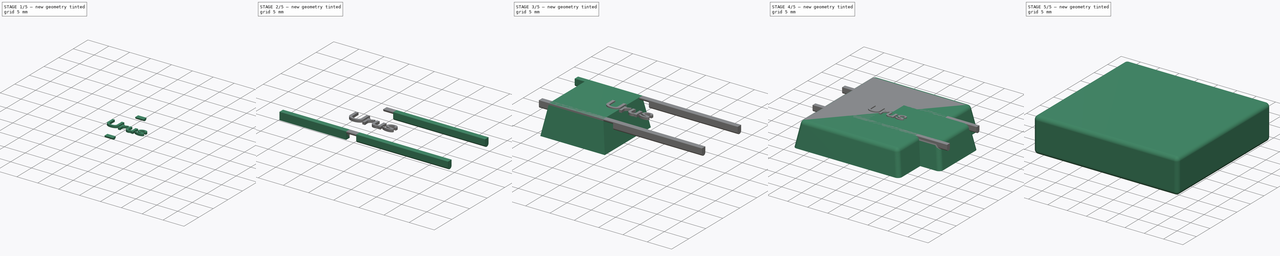
[diagram: build sequence overview — one tinted view per stage of 5, left to right]
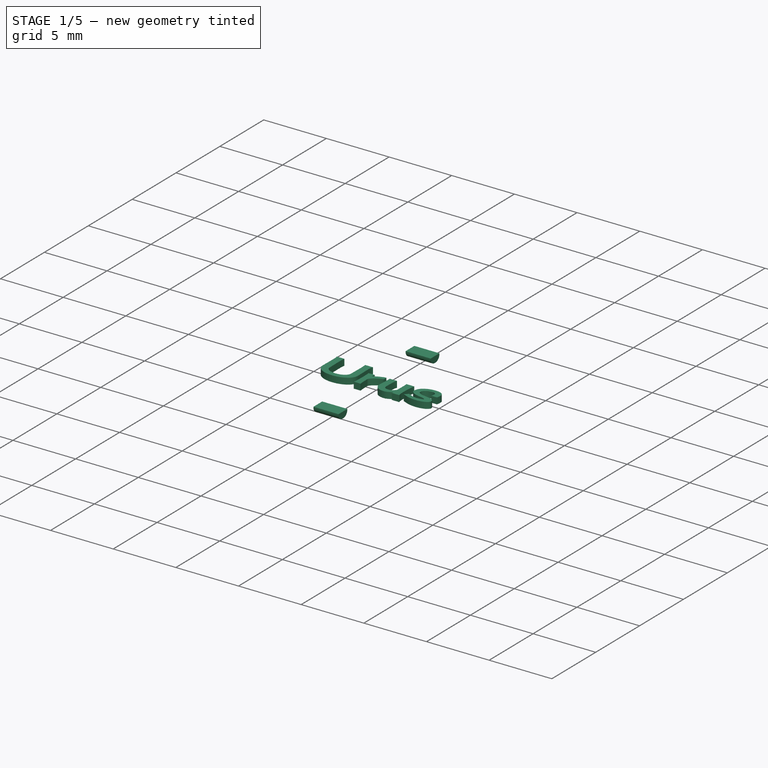
[diagram: stage 1 of 5 — iso view after this stage's code; geometry added in this stage tinted green]
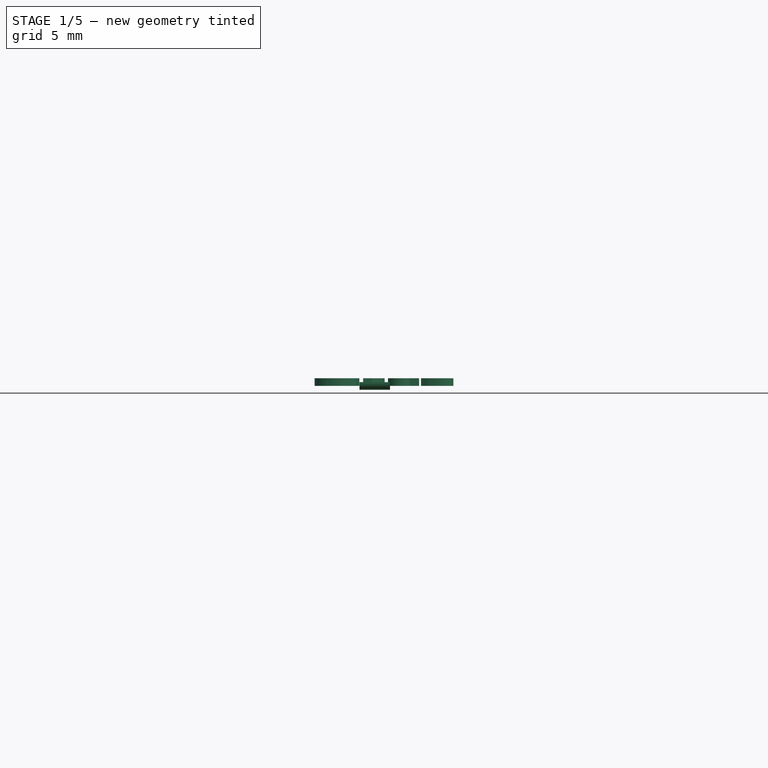
[diagram: stage 1 of 5 — front view after this stage's code; geometry added in this stage tinted green]
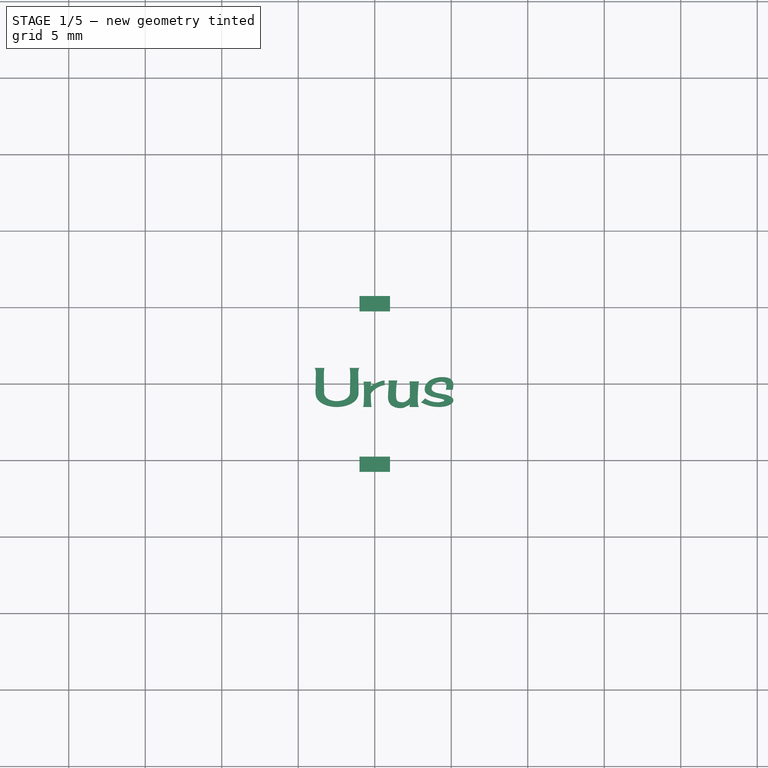
[diagram: stage 1 of 5 — top view after this stage's code; geometry added in this stage tinted green]
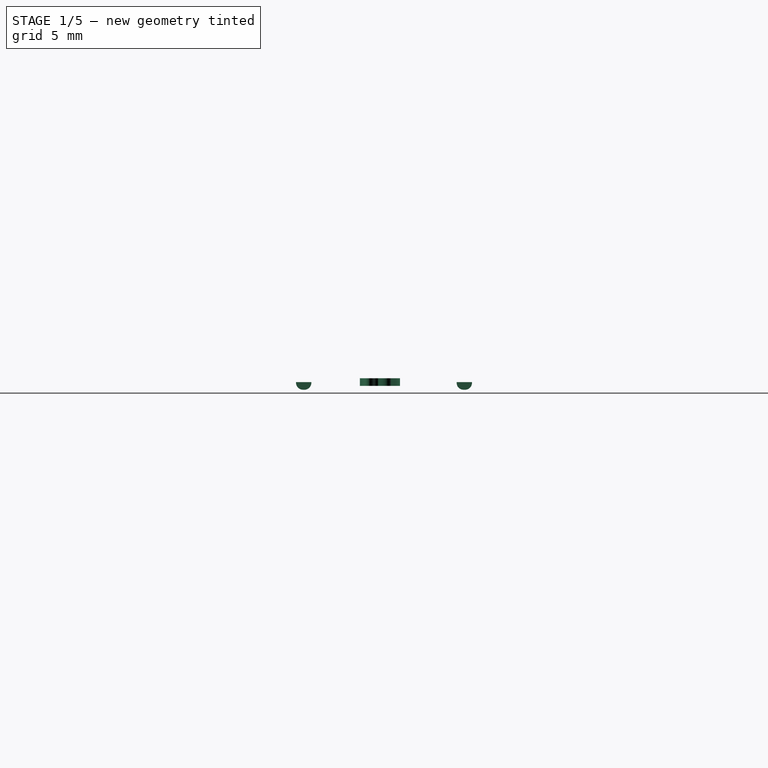
[diagram: stage 1 of 5 — right view after this stage's code; geometry added in this stage tinted green]
FCSTD DOCUMENT  (FreeCAD 0.19R24276 (Git))
Label: Mold_negative4
License: All rights reserved
LicenseURL: http://en.wikipedia.org/wiki/All_rights_reserved
objects: Part::Fillet×10, Part::Box×7, Part::Extrusion×4, Sketcher::SketchObject×3, Part::MultiFuse×2, Part::Cut×2, Spreadsheet::Sheet×1, Part::Part2DObjectPython×1
note: 29 computed .brp shape members not serialized (recipe doc carries the construction recipe); baked Part::Feature solids carry a one-line shape summary decoded from their .brp

FEATURE [Part::Box] Box005  label="Cube005"
  AttacherType = Attacher::AttachEngine3D
  Height = 0.5
  Length = 2
  Placement = pos=(-1,-5.75,5.5) rot=(0,0,1;0rad)
  Width = 1
  expr: .Placement.Base.z = <<data>>.height - 0.5
  expr: .Placement.Base.y = -<<data>>.left_width / 2 + <<data>>.channel_Y
FEATURE [Part::Box] Box006  label="Cube006"
  AttacherType = Attacher::AttachEngine3D
  Height = 0.5
  Length = 2
  Placement = pos=(-1,4.75,5.5) rot=(0,0,1;0rad)
  Width = 1
  expr: .Placement.Base.z = <<data>>.height - 0.5
  expr: .Placement.Base.y = <<data>>.left_width / 2 - <<data>>.channel_Y - 1mm
FEATURE [Part::Fillet] Fillet008
  Base = -> Box006
  Edges = 2 edges r=0.45: [Edge9,Edge11]
FEATURE [Part::Fillet] Fillet009
  Base = -> Box005
  Edges = 2 edges r=0.45: [Edge9,Edge11]
FEATURE [Part::Part2DObjectPython] ShapeString  # Draft 2D object (typed FeaturePython)
  AttacherType1 = Attacher::AttachEnginePlane
  FontFile = <userpath>/Documents/git/KiCad/Inkscape/fonts/CherryCreamSoda-Regular.ttf
  MapMode = 5
  MapMode1 = -1
  MapPathParameter1 = -3
  MapReversed1 = false
  Size = 1.5
  String = Urus
  Tracking = 0
FEATURE [Part::Extrusion] Extrude005
  Base = -> ShapeString
  Dir = (0,0,0.5)
  DirMode = 0
  FaceMakerClass = Part::FaceMakerExtrusion
  LengthFwd = 0
  LengthRev = 0
  Placement = pos=(-4,-1.5,5.75) rot=(0,0,1;0rad)
  Solid = false
  Symmetric = false
  expr: .Placement.Base.z = <<data>>.height - 0.25
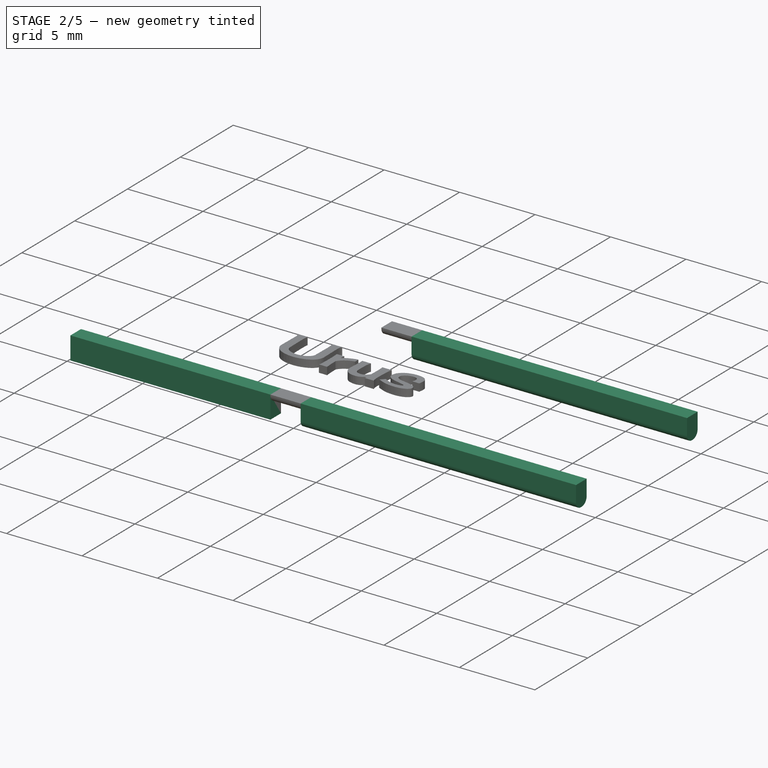
[diagram: stage 2 of 5 — iso view after this stage's code; geometry added in this stage tinted green]
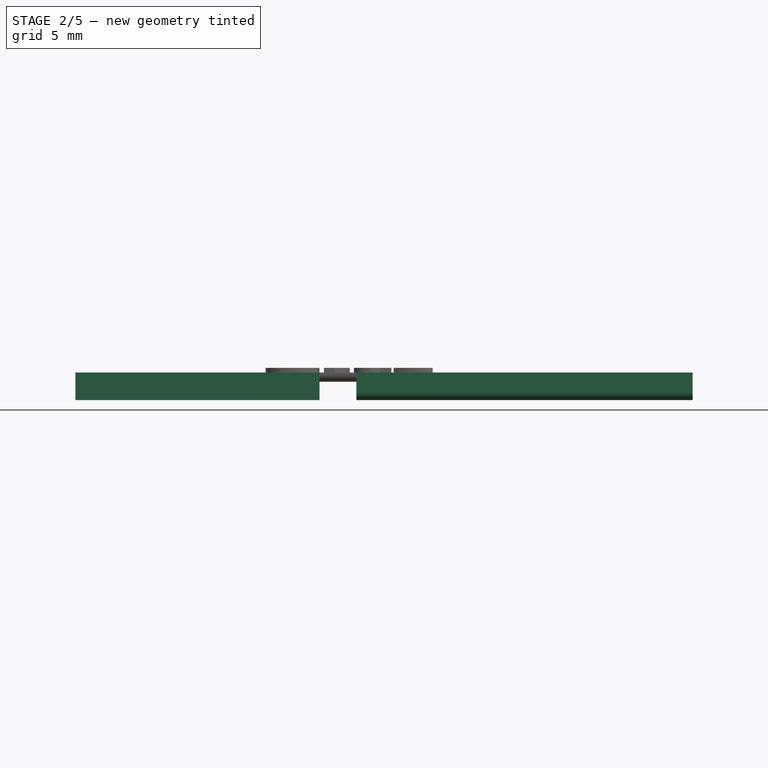
[diagram: stage 2 of 5 — front view after this stage's code; geometry added in this stage tinted green]
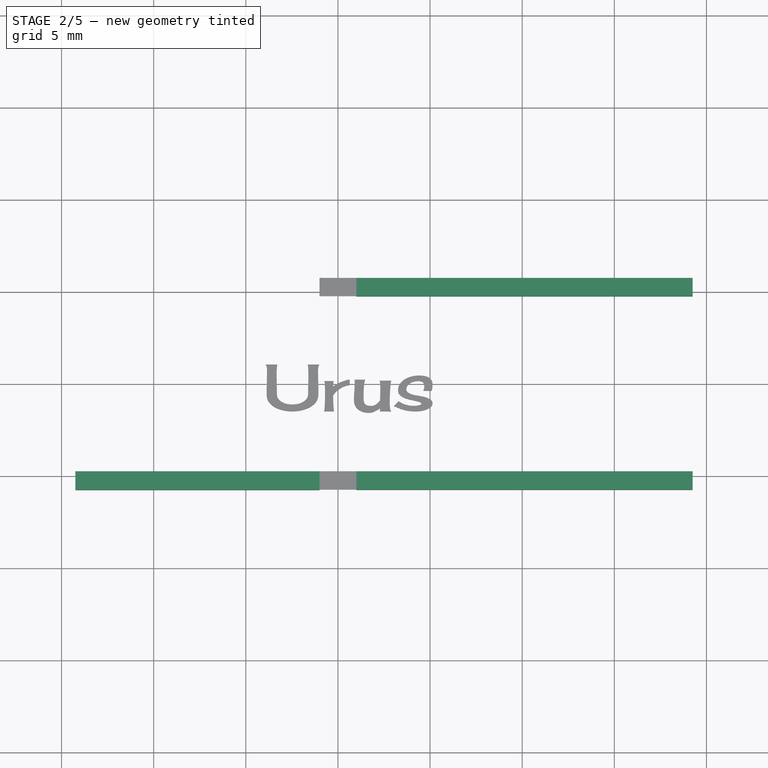
[diagram: stage 2 of 5 — top view after this stage's code; geometry added in this stage tinted green]
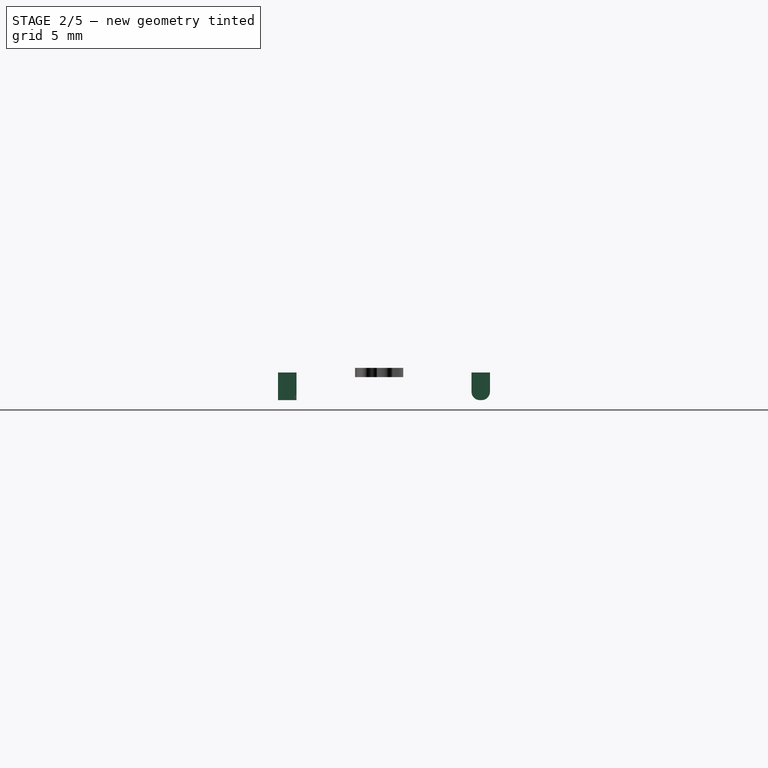
[diagram: stage 2 of 5 — right view after this stage's code; geometry added in this stage tinted green]
FEATURE [Part::Box] Box001  label="Cube001"
  AttacherType = Attacher::AttachEngine3D
  Height = 1.5
  Length = 18.25
  Placement = pos=(1,4.75,4.5) rot=(0,0,1;0rad)
  Width = 1
  expr: Height = <<data>>.channel_depth
  expr: .Placement.Base.z = <<data>>.height - <<data>>.channel_Z
  expr: .Placement.Base.y = <<data>>.left_width / 2 - <<data>>.channel_Y - 1mm
  expr: Length = <<data>>.length / 2 + <<data>>.left_length
FEATURE [Part::Box] Box002  label="Cube002"
  AttacherType = Attacher::AttachEngine3D
  Height = 1.5
  Length = 18.25
  Placement = pos=(1,-5.75,4.5) rot=(0,0,1;0rad)
  Width = 1
  expr: Height = <<data>>.channel_depth
  expr: .Placement.Base.z = <<data>>.height - <<data>>.channel_Z
  expr: .Placement.Base.y = -<<data>>.left_width / 2 + <<data>>.channel_Y
  expr: Length = <<data>>.length / 2 + <<data>>.left_length
FEATURE [Part::Box] Box003  label="Cube003"
  AttacherType = Attacher::AttachEngine3D
  Height = 1.5
  Length = 13.25
  Placement = pos=(-14.25,-5.75,4.5) rot=(0,0,1;0rad)
  Width = 1
  expr: .Placement.Base.z = <<data>>.height - <<data>>.channel_Z
  expr: Height = <<data>>.channel_depth
  expr: .Placement.Base.x = -<<data>>.length / 2 + <<data>>.right_length - 1mm
  expr: .Placement.Base.y = -<<data>>.left_width / 2 + <<data>>.channel_Y
  expr: Length = <<data>>.length / 2 + <<data>>.right_length
FEATURE [Part::Fillet] Fillet006
  Base = -> Box001
  Edges = 2 edges r=0.45: [Edge9,Edge11]
FEATURE [Part::Fillet] Fillet007
  Base = -> Box002
  Edges = 2 edges r=0.45: [Edge9,Edge11]
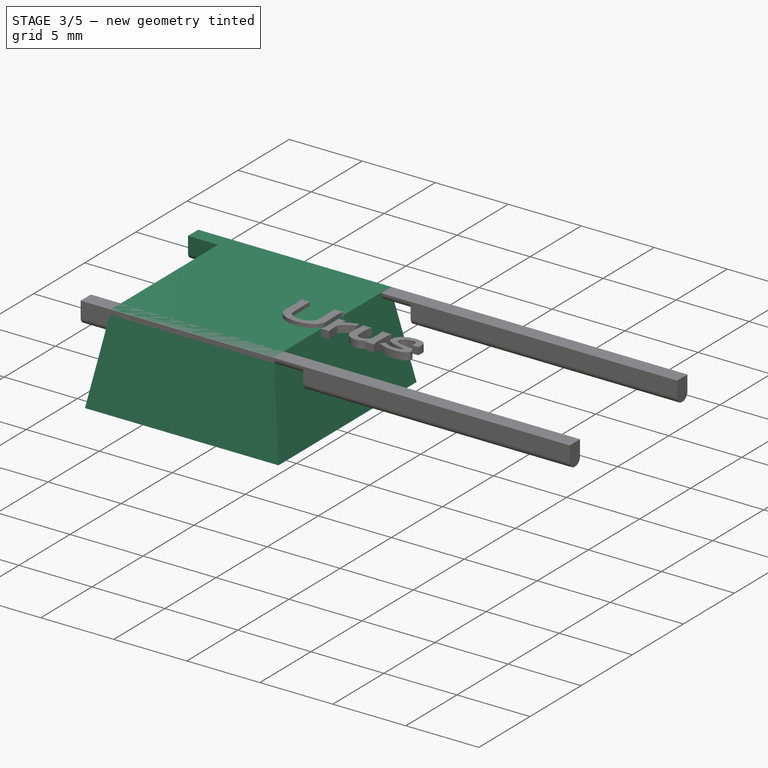
[diagram: stage 3 of 5 — iso view after this stage's code; geometry added in this stage tinted green]
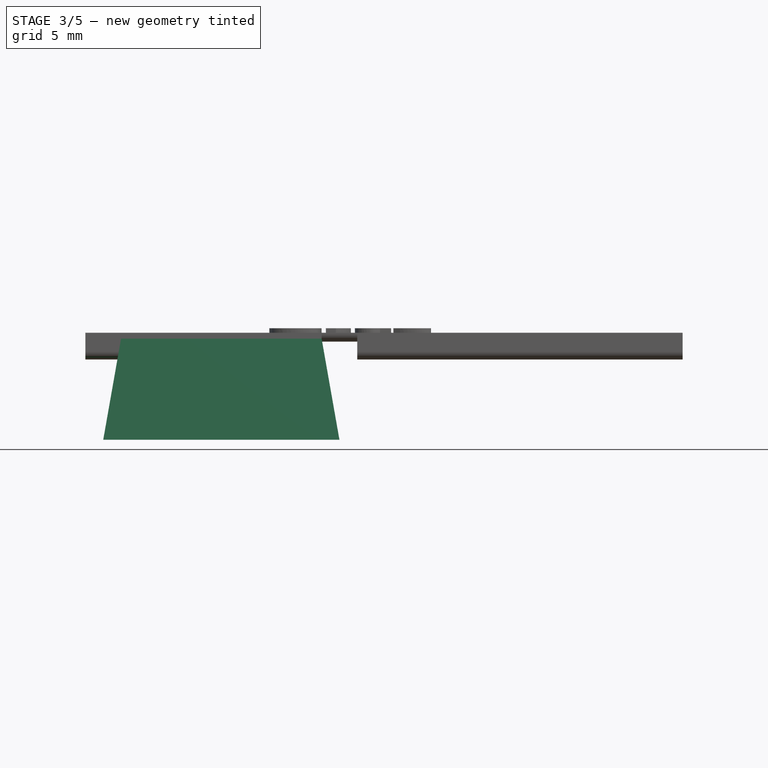
[diagram: stage 3 of 5 — front view after this stage's code; geometry added in this stage tinted green]
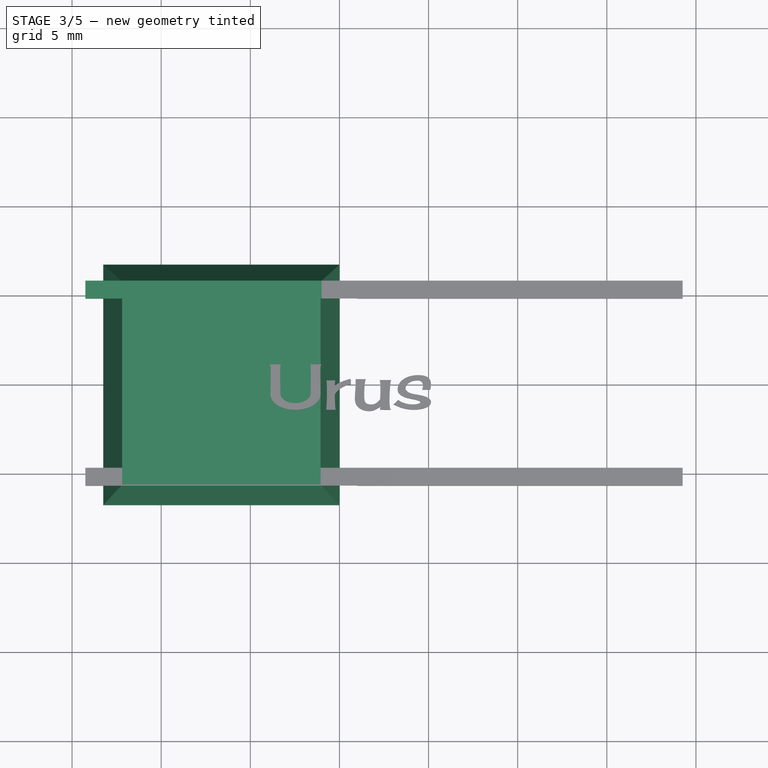
[diagram: stage 3 of 5 — top view after this stage's code; geometry added in this stage tinted green]
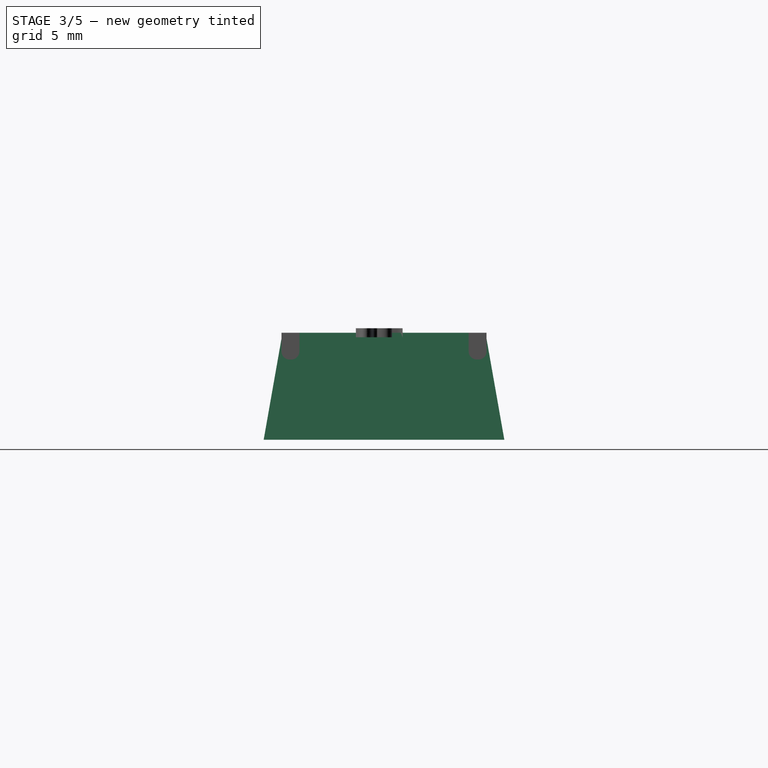
[diagram: stage 3 of 5 — right view after this stage's code; geometry added in this stage tinted green]
FEATURE [Sketcher::SketchObject] Sketch001
  FullyConstrained = true
  MapMode = 5
  expr: Constraints[10] = Spreadsheet.right_length + Spreadsheet.length / 2
  expr: Constraints[7] = Spreadsheet.right_width
  sketch-geometry (4):
    g0: LineSegment StartX=-13.25 StartY=6.75 StartZ=0 EndX=0 EndY=6.75 EndZ=0
    g1: LineSegment StartX=0 StartY=6.75 StartZ=0 EndX=0 EndY=-6.75 EndZ=0
    g2: LineSegment StartX=0 StartY=-6.75 StartZ=0 EndX=-13.25 EndY=-6.75 EndZ=0
    g3: LineSegment StartX=-13.25 StartY=-6.75 StartZ=0 EndX=-13.25 EndY=6.75 EndZ=0
  constraints (11):
    c: Coincident(g0,g1)
    c: Coincident(g1,g2)
    c: Coincident(g2,g3)
    c: Coincident(g3,g0)
    c: Horizontal(g0)
    c: Horizontal(g2)
    c: Vertical(g1)
    c: DistanceY(g2,g0) = 13.5
    c: Symmetric(g2,g0,g-1)
    c: DistanceX(g0,g-1) = 0
    c: DistanceX(g2,g1) = 13.25
FEATURE [Part::Extrusion] Extrude001
  Base = -> Sketch001
  Dir = (0,0,6)
  DirMode = 0
  FaceMakerClass = Part::FaceMakerExtrusion
  LengthFwd = 0
  LengthRev = 0
  Solid = true
  Symmetric = false
  TaperAngle = -10
  expr: TaperAngle = Spreadsheet.taper
  expr: .Dir.z = Spreadsheet.height
FEATURE [Part::Box] Box004  label="Cube004"
  AttacherType = Attacher::AttachEngine3D
  Height = 1.5
  Length = 13.25
  Placement = pos=(-14.25,4.75,4.5) rot=(0,0,1;0rad)
  Width = 1
  expr: .Placement.Base.z = <<data>>.height - <<data>>.channel_Z
  expr: Height = <<data>>.channel_depth
  expr: .Placement.Base.x = -<<data>>.length / 2 + <<data>>.right_length - 1mm
  expr: .Placement.Base.y = <<data>>.left_width / 2 - <<data>>.channel_Y - 1mm
  expr: Length = <<data>>.length / 2 + <<data>>.right_length
FEATURE [Part::Fillet] Fillet004
  Base = -> Box004
  Edges = 2 edges r=0.45: [Edge9,Edge11]
FEATURE [Part::Fillet] Fillet005
  Base = -> Box003
  Edges = 2 edges r=0.45: [Edge9,Edge11]
FEATURE [Part::MultiFuse] Fusion001  label="Rail and Text"
  Shapes = -> [Fillet009,Fillet008,Fillet007,Fillet006,Fillet005,Fillet004,Extrude005]
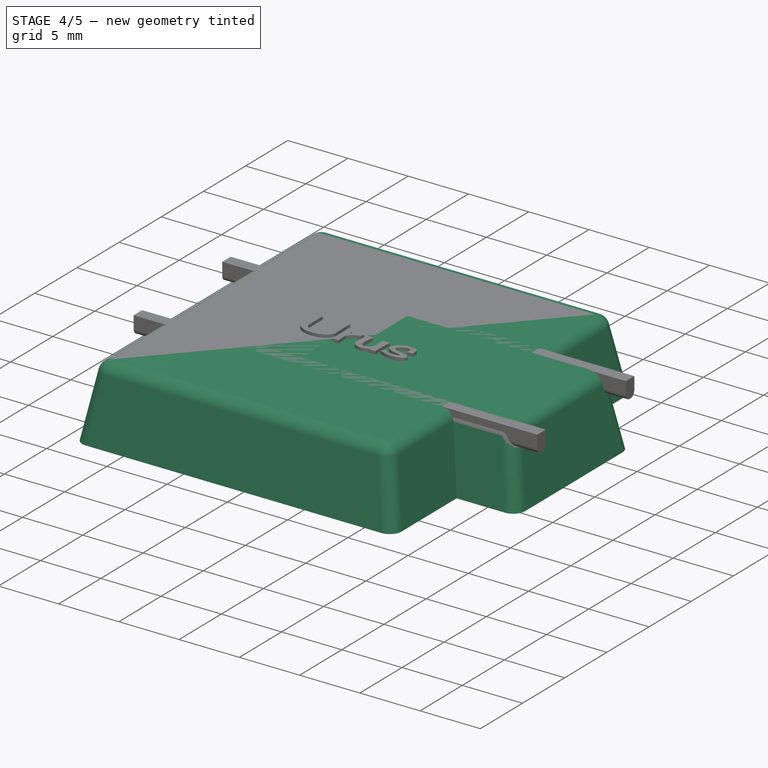
[diagram: stage 4 of 5 — iso view after this stage's code; geometry added in this stage tinted green]
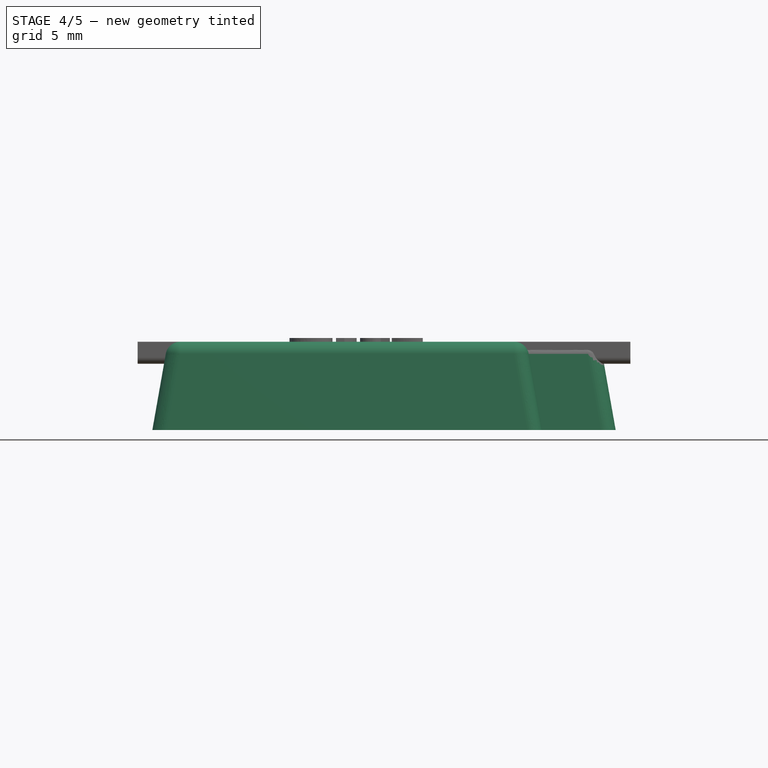
[diagram: stage 4 of 5 — front view after this stage's code; geometry added in this stage tinted green]
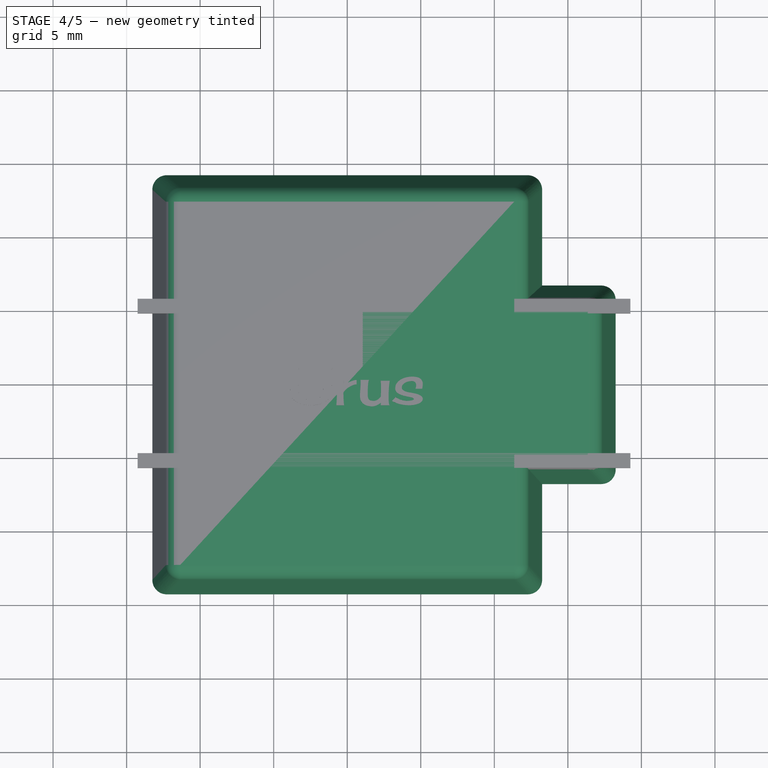
[diagram: stage 4 of 5 — top view after this stage's code; geometry added in this stage tinted green]
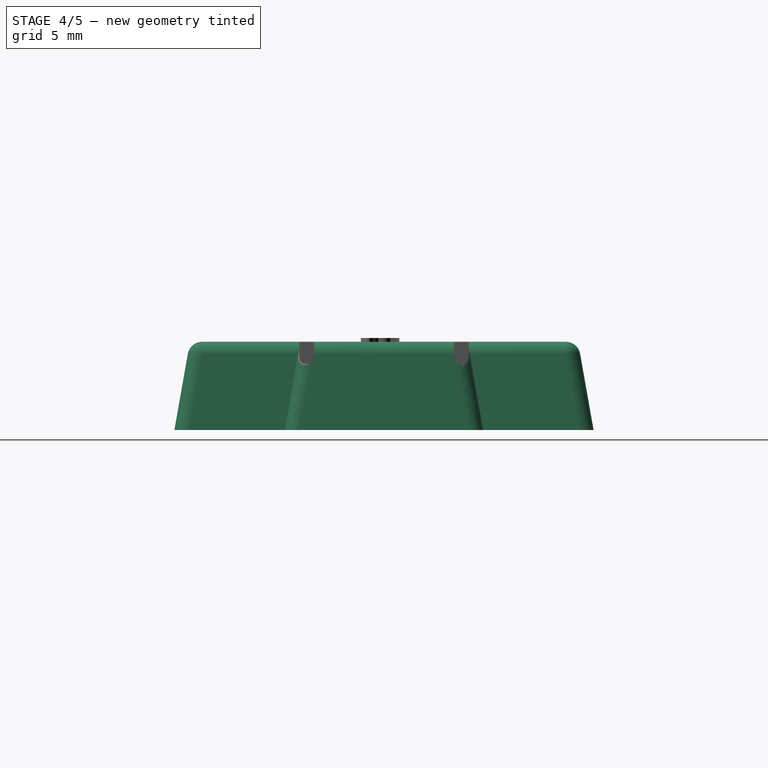
[diagram: stage 4 of 5 — right view after this stage's code; geometry added in this stage tinted green]
FEATURE [Sketcher::SketchObject] Sketch
  FullyConstrained = true
  MapMode = 5
  expr: Constraints[7] = Spreadsheet.width
  expr: Constraints[6] = Spreadsheet.length
  sketch-geometry (4):
    g0: LineSegment StartX=-13.25 StartY=14.25 StartZ=0 EndX=13.25 EndY=14.25 EndZ=0
    g1: LineSegment StartX=13.25 StartY=14.25 StartZ=0 EndX=13.25 EndY=-14.25 EndZ=0
    g2: LineSegment StartX=13.25 StartY=-14.25 StartZ=0 EndX=-13.25 EndY=-14.25 EndZ=0
    g3: LineSegment StartX=-13.25 StartY=-14.25 StartZ=0 EndX=-13.25 EndY=14.25 EndZ=0
  constraints (10):
    c: Coincident(g0,g1)
    c: Coincident(g1,g2)
    c: Coincident(g2,g3)
    c: Coincident(g3,g0)
    c: Horizontal(g2)
    c: Vertical(g1)
    c: DistanceX(g0,g0) = 26.5
    c: DistanceY(g2,g0) = 28.5
    c: Symmetric(g0,g0,g-2)
    c: Symmetric(g0,g2,g-1)
FEATURE [Part::Extrusion] Extrude
  Base = -> Sketch
  Dir = (0,0,6)
  DirMode = 0
  FaceMakerClass = Part::FaceMakerExtrusion
  LengthFwd = 0
  LengthRev = 0
  Solid = true
  Symmetric = false
  TaperAngle = -10
  expr: TaperAngle = Spreadsheet.taper
  expr: .Dir.z = Spreadsheet.height
FEATURE [Sketcher::SketchObject] Sketch002
  FullyConstrained = true
  MapMode = 5
  expr: Constraints[10] = Spreadsheet.left_length + Spreadsheet.length / 2
  expr: Constraints[9] = Spreadsheet.right_width
  sketch-geometry (4):
    g0: LineSegment StartX=0 StartY=6.75 StartZ=0 EndX=18.25 EndY=6.75 EndZ=0
    g1: LineSegment StartX=18.25 StartY=6.75 StartZ=0 EndX=18.25 EndY=-6.75 EndZ=0
    g2: LineSegment StartX=18.25 StartY=-6.75 StartZ=0 EndX=0 EndY=-6.75 EndZ=0
    g3: LineSegment StartX=0 StartY=-6.75 StartZ=0 EndX=0 EndY=6.75 EndZ=0
  constraints (11):
    c: Coincident(g0,g1)
    c: Coincident(g1,g2)
    c: Coincident(g2,g3)
    c: Coincident(g3,g0)
    c: Horizontal(g0)
    c: Horizontal(g2)
    c: Vertical(g3)
    c: PointOnObject(g0,g-2)
    c: Symmetric(g0,g1,g-1)
    c: DistanceY(g1,g0) = 13.5
    c: DistanceX(g0,g0) = 18.25
FEATURE [Part::Extrusion] Extrude004
  Base = -> Sketch002
  Dir = (0,0,6)
  DirMode = 0
  FaceMakerClass = Part::FaceMakerExtrusion
  LengthFwd = 0
  LengthRev = 0
  Solid = true
  Symmetric = false
  TaperAngle = -10
  expr: TaperAngle = Spreadsheet.taper
  expr: .Dir.z = Spreadsheet.height
FEATURE [Spreadsheet::Sheet] Spreadsheet  label="data"
  cells = A1=taper; B1(taper)=-10; H1=-0.5; A2=height; B2(height)=6; D2=5; E2=5; G2=6; H2=10; A3=length; B3(length)==26.5mm; D3==27.5mm; E3==29mm; F3==29mm; G3==31mm; H3==26mm; I3==20mm; J3==20mm; K3==20mm; L3==25.5mm; M3==23.5mm; A4=width; B4(width)==28.5mm; D4==21.5mm; E4==21mm; F4==21mm; G4==22mm; H4==25.5mm; I4==22.5mm; J4==22.5mm; K4==20.5mm; L4==21mm; M4==19mm; A5=left_length; B5(left_length)==5mm; D5==4mm; E5==4mm; F5==4mm; G5==5mm; H5==5mm; I5==3mm; J5==3mm; K5==5mm; L5==4mm; M5==5mm; A6=left_width; B6(left_width)==15.5mm; D6==14.5mm; E6==13mm; F6==13mm; G6==13.5mm; H6==13.5mm; I6==12.5mm; J6==12.5mm; K6==13mm; L6==11mm; M6==10mm; A7=right_length; B7(right_length)==0mm; D7==4mm; E7==0mm; F7==4mm; G7==5mm; H7==0mm; I7==0mm; J7==0mm; K7==0mm; L7==0mm; A8=right_width; B8(right_width)==13.5mm; D8==14.5mm; E8==13mm; F8==13mm; G8==13.5mm; A9=hole_offset; B9(hole_offset)==27mm; D9==27mm; E9==27mm; F9==17mm; G9==27mm; A10=wall_thickness; B10(wall_thickness)==3mm; A11=channel_depth; B11(channel_depth)==1.5mm; A12=channel_Z; B12(channel_Z)=1.5; A13=channel_Y; B13(channel_Y)==2mm; D13=<-offset to account for taper and height; A14=name; B14(name)=Urus; D14=Boss 302; E14=Kia wo; F14=Kia w; G14=Grand Cross; H14=Urus; I14=Charger; J14=Impala; K14=84 Audi Quattro; L14=Demon; M14=55 Nomad; B16=+1.5mm for taper; M17=13g for 4mm
FEATURE [Part::Fillet] Fillet
  Base = -> Extrude004
  Edges = 5 edges r=1: [Edge2,Edge3,Edge6,Edge7,Edge10]
FEATURE [Part::Fillet] Fillet001
  Base = -> Extrude
  Edges = 8 edges r=1: [Edge2,Edge3,Edge4,Edge6,Edge7,Edge9,Edge10,Edge12]
FEATURE [Part::Fillet] Fillet002
  Base = -> Extrude001
  Edges = 5 edges r=1: [Edge3,Edge4,Edge9,Edge10,Edge12]
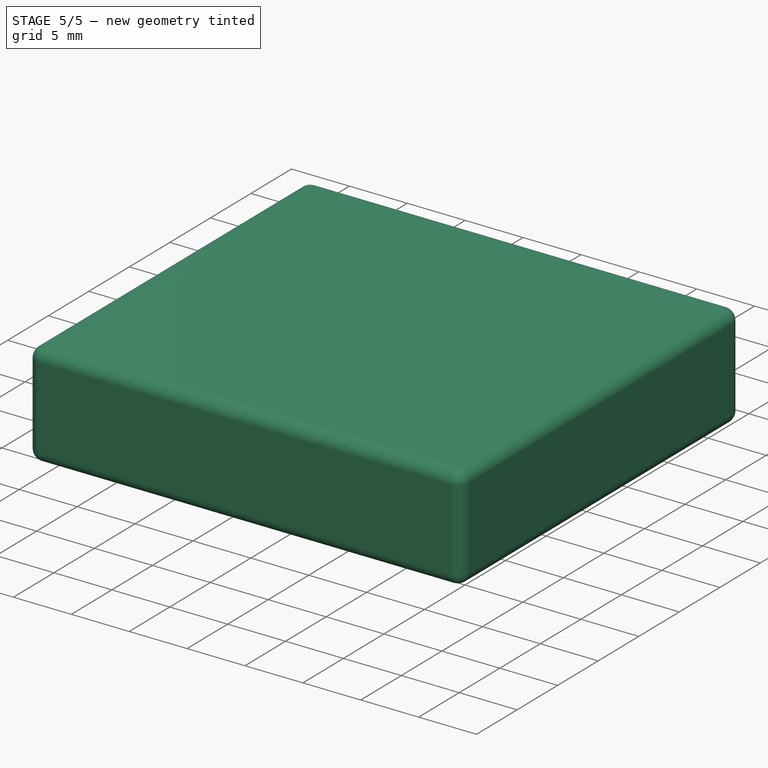
[diagram: stage 5 of 5 — iso view after this stage's code; geometry added in this stage tinted green]
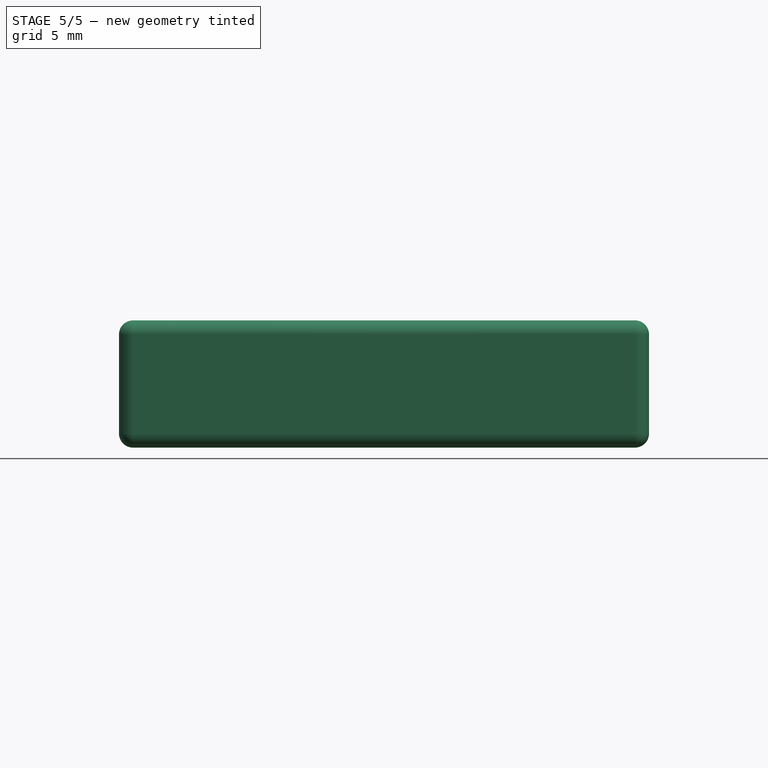
[diagram: stage 5 of 5 — front view after this stage's code; geometry added in this stage tinted green]
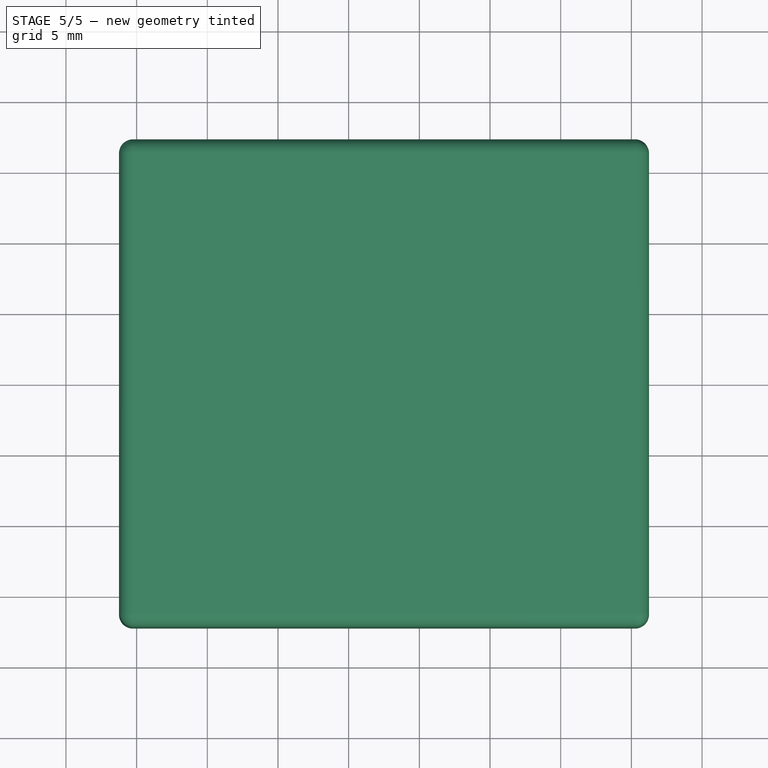
[diagram: stage 5 of 5 — top view after this stage's code; geometry added in this stage tinted green]
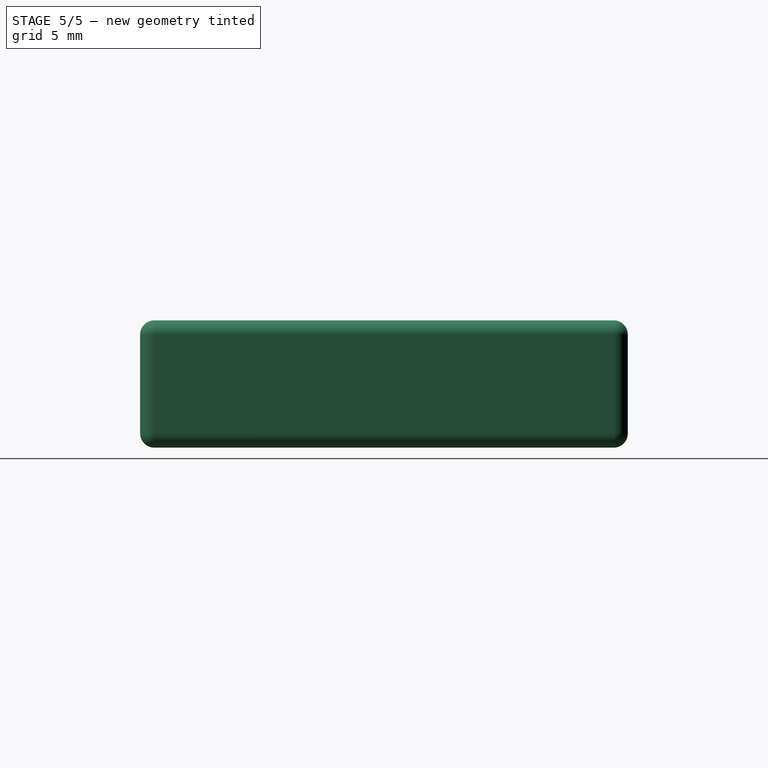
[diagram: stage 5 of 5 — right view after this stage's code; geometry added in this stage tinted green]
FEATURE [Part::MultiFuse] Fusion
  Shapes = -> [Fillet,Fillet001,Fillet002]
FEATURE [Part::Box] Box  label="Cube"
  AttacherType = Attacher::AttachEngine3D
  Height = 9
  Length = 37.5
  Placement = pos=(-16.25,-17.25,0) rot=(0,0,1;0rad)
  Width = 34.5
  expr: .Placement.Base.y = -<<data>>.width / 2 - <<data>>.wall_thickness
  expr: .Placement.Base.x = -<<data>>.length / 2 - <<data>>.wall_thickness
  expr: Height = <<data>>.height + 3
  expr: Width = <<data>>.width + 2 * <<data>>.wall_thickness
  expr: Length = <<data>>.length + <<data>>.left_length + 2 * <<data>>.wall_thickness
FEATURE [Part::Fillet] Fillet003  label="MoldShape"
  Base = -> Box
  Edges = 12 edges r=1: [Edge1,Edge2,Edge3,Edge4,Edge5,Edge6,Edge7,Edge8,Edge9,Edge10,Edge11,Edge12]
FEATURE [Part::Cut] Cut001  label="WeighShape"
  Base = -> Fusion
  Tool = -> Fusion001
FEATURE [Part::Cut] Cut
  Base = -> Fillet003
  Tool = -> Cut001
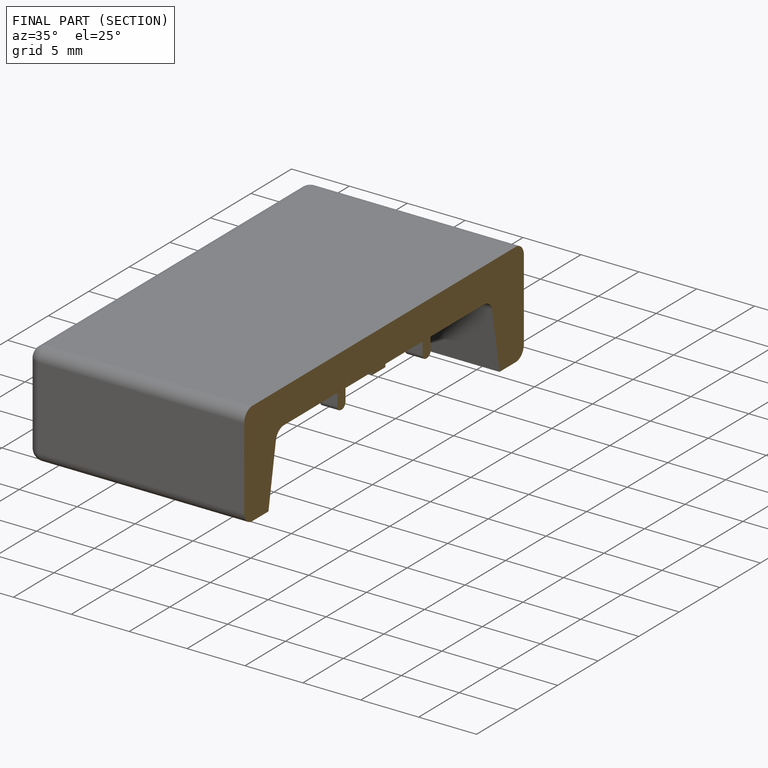
[diagram: finished part — half-section view (interior)]
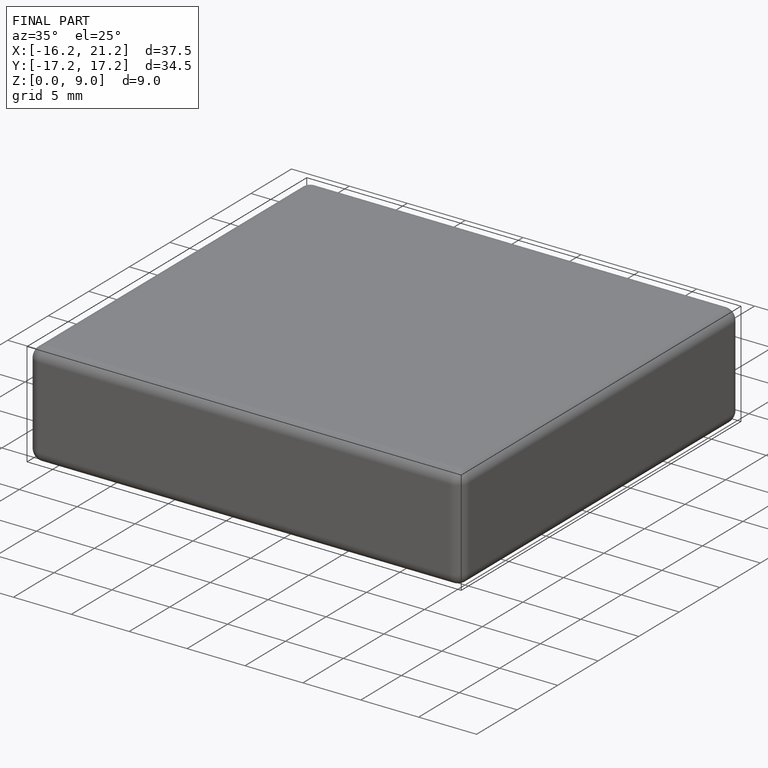
[diagram: finished part — iso view with bounding-box wireframe]
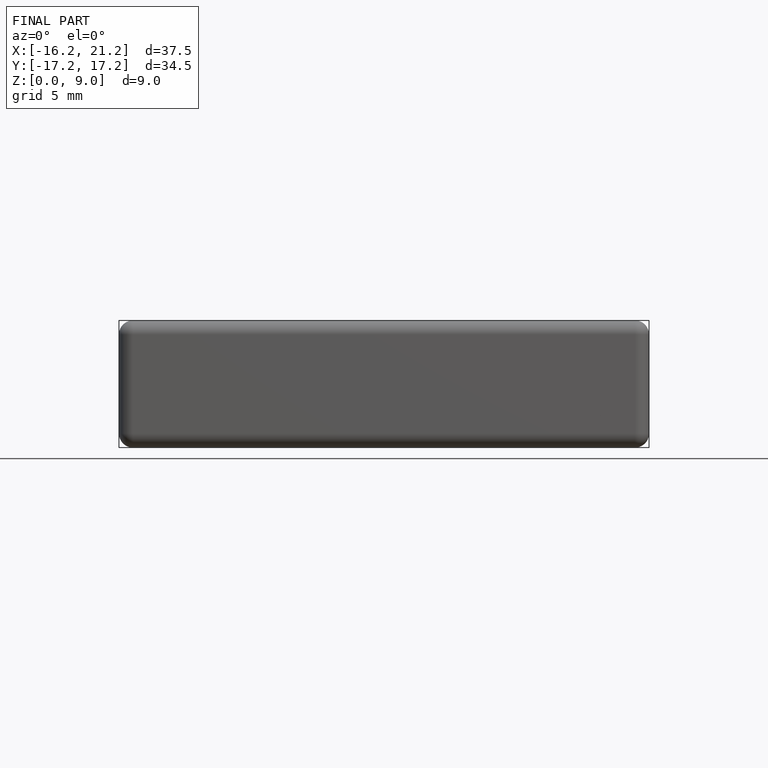
[diagram: finished part — front view with bounding-box wireframe]
